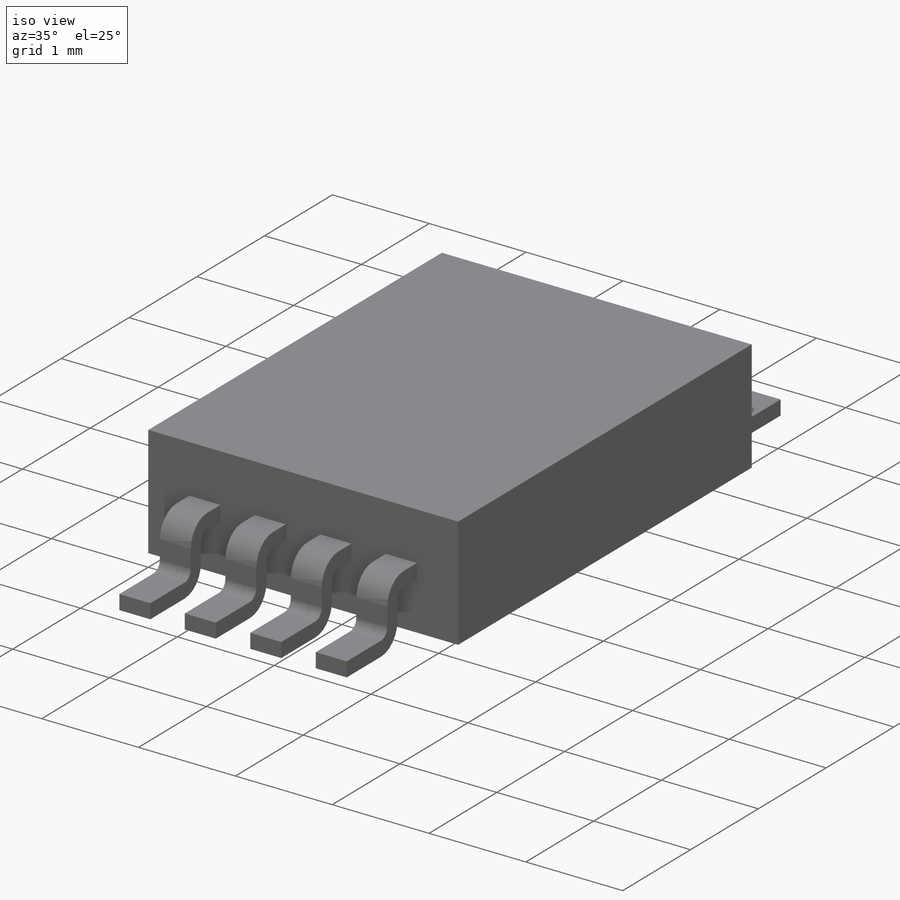
[diagram: iso view]
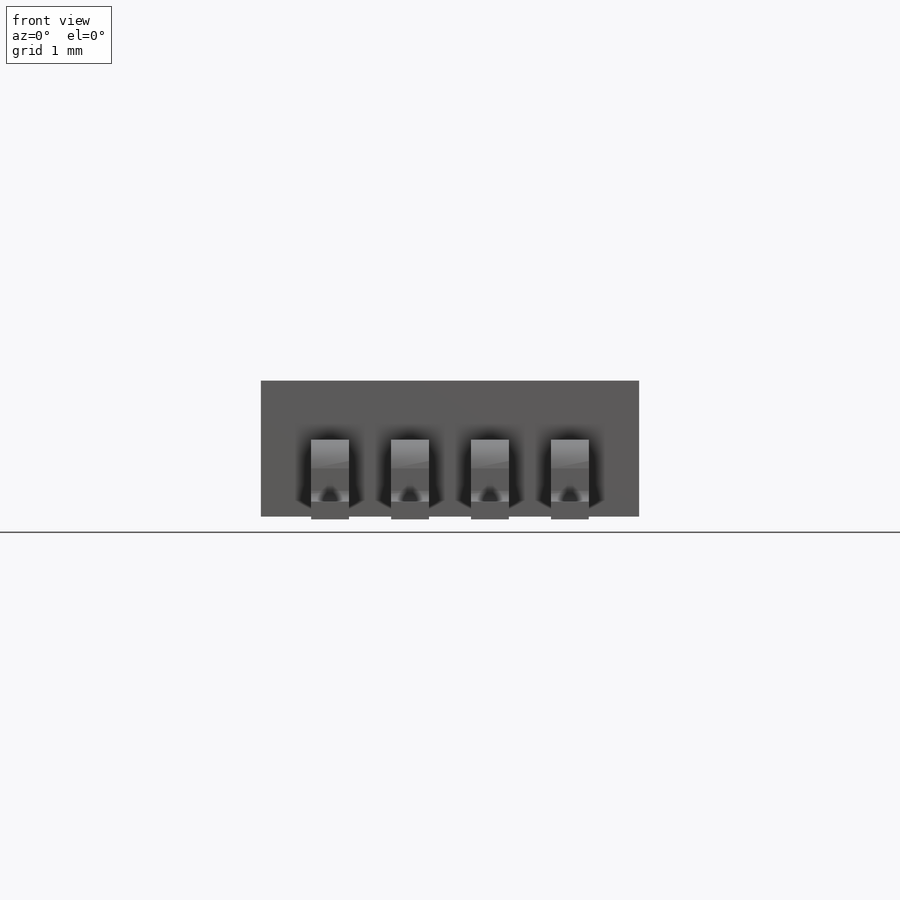
[diagram: front view]
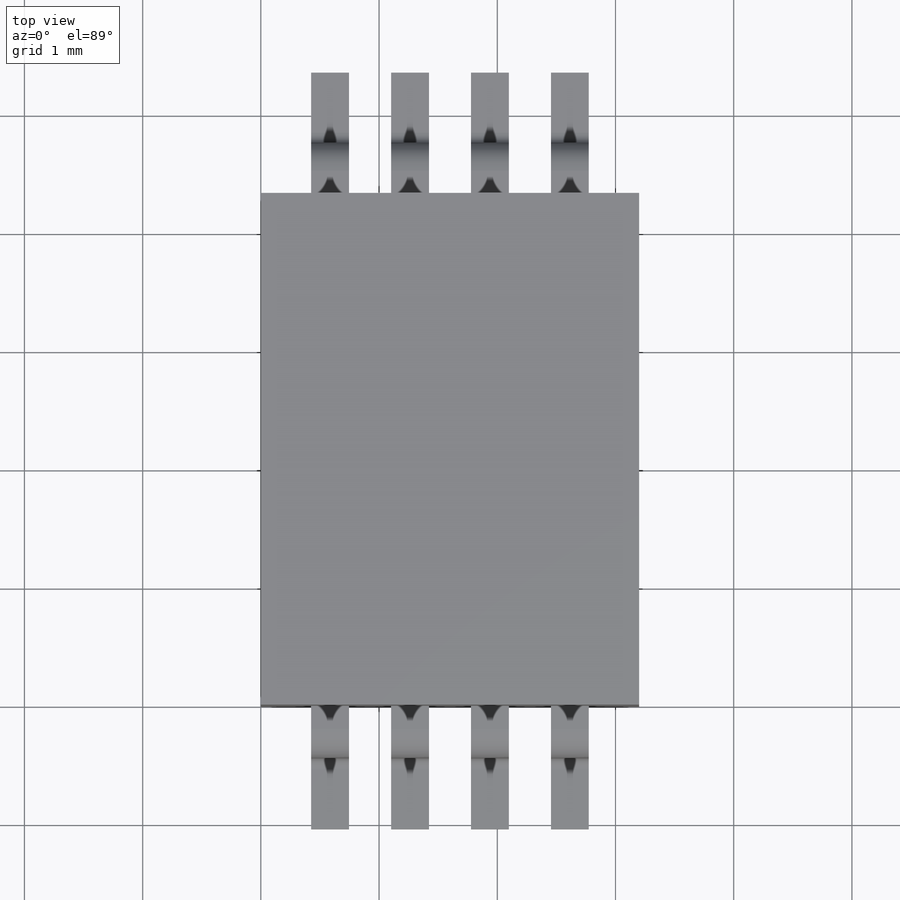
[diagram: top view]
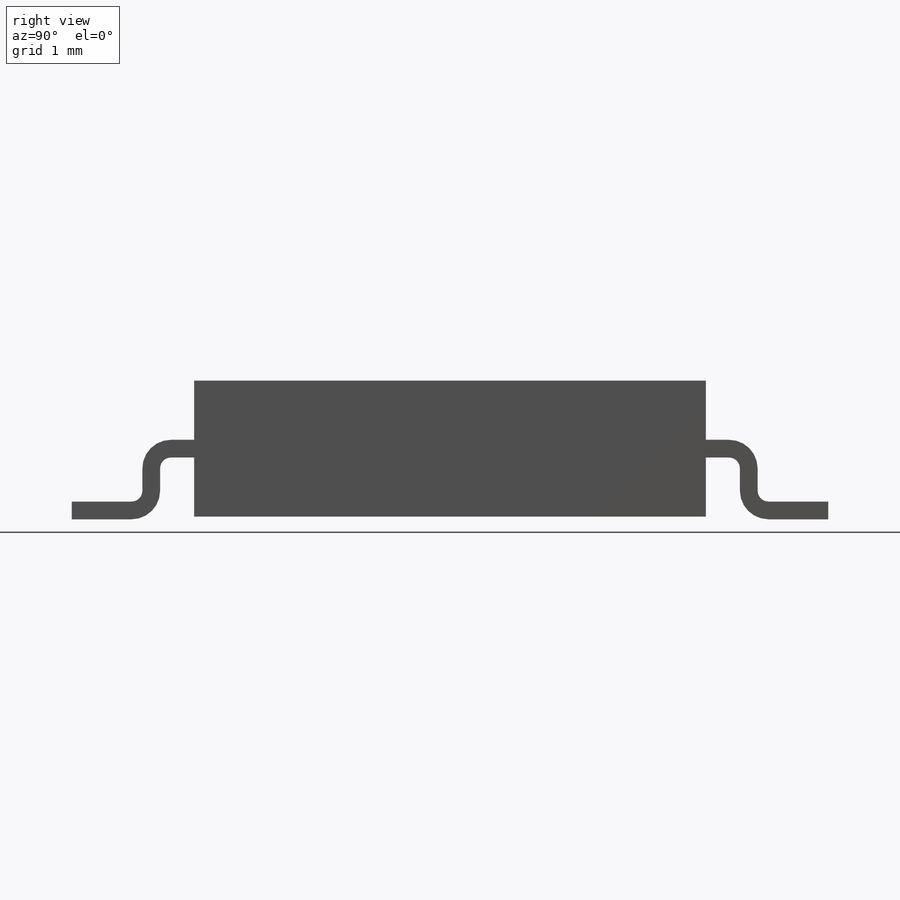
[diagram: right view]
SOLIDWORKS PART (.sldprt)
format: sldprt  version: not decoded by parser v0  size: 223,744 bytes
history: native  units: mm
features: sketch x3, plane x2, material x1, extrude x1, sweep x1, pattern_circular x1 (+12 scaffold rows collapsed)
feature tree (21):
  scaffold x12  (default folders/planes/origin — collapsed)
  material  "Material <not specified>"
  sketch  "Sketch1"  dims[D1=~20.123127mm D2=~21.120968mm]
  extrude  "Boss-Extrude1"  Depth=1.15mm
  plane  "Plane2"
  plane  "Plane1"
  sketch  "Sketch2"  dims[c1.D1=~0.326993mm c1.D2=~0.373948mm c2.D1=0.15mm c2.D2=~1.783854mm c3.D1=4.0]
  sketch  "Sketch3"  dims[D1=~0.30638mm]
  sweep  "Sweep1"
  pattern_circular  "CirPattern1"  Count=2 Angle=180deg
decode coverage: 5 of 6 modeling features carry decoded parameters
note: ~ marks probable driven/reference dimensions
note: suppression state not decoded; provenance and decode notes live in map.json
